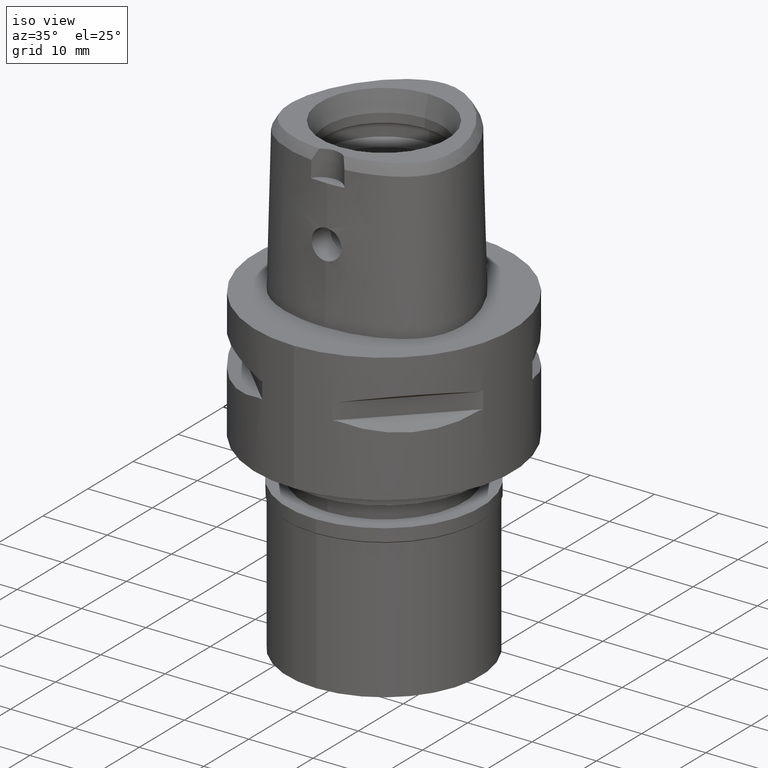
[diagram: clean part render]
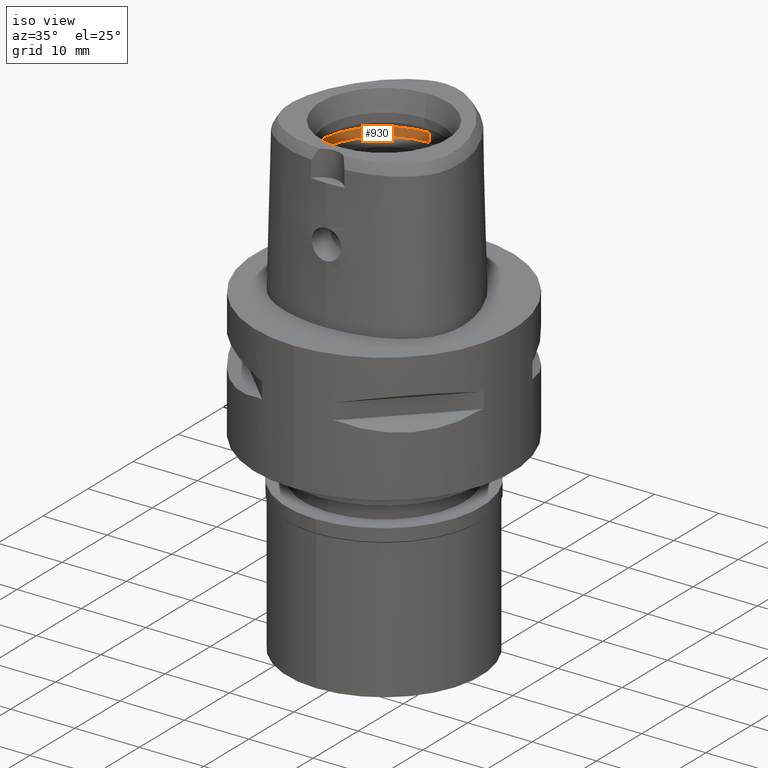
[diagram: same view with one face highlighted and labeled with its STEP entity id]
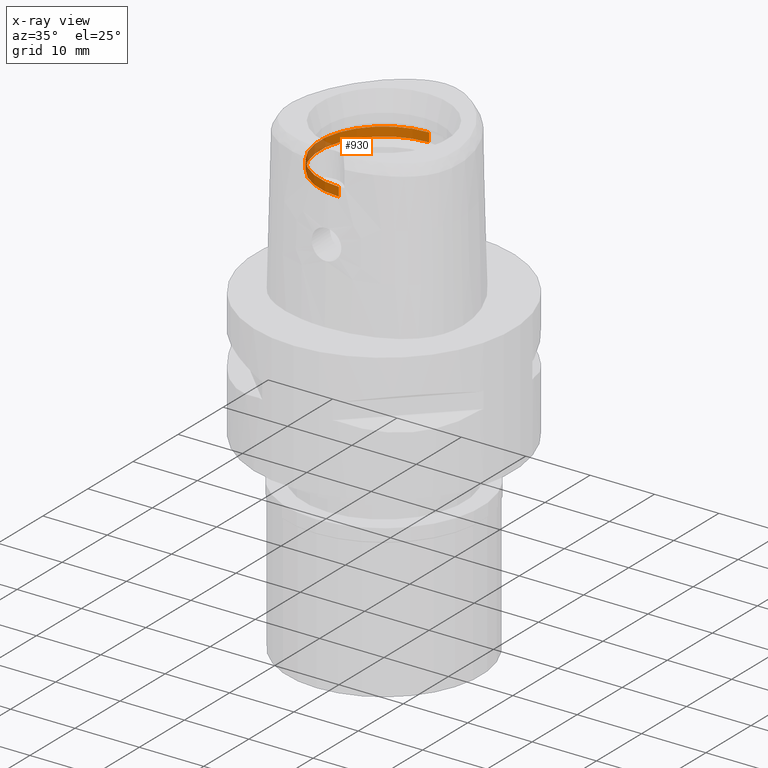
[diagram: x-ray of the same camera — body ghosted, the highlighted face saturated]
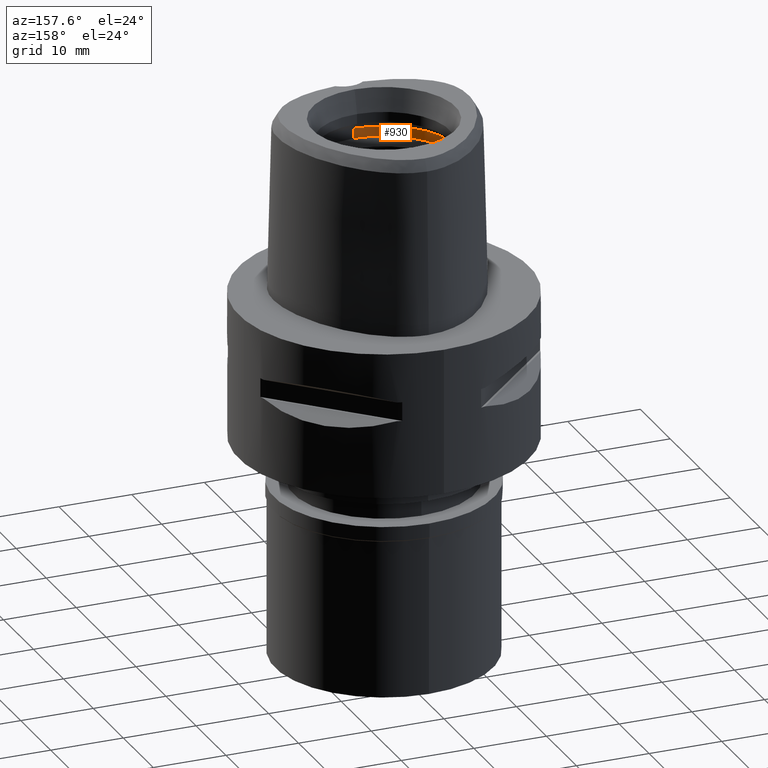
[diagram: same view with one face highlighted and labeled with its STEP entity id]
A machine part, iso view. The second image highlights one B-rep face of the part: STEP entity #930.
The next image is the same camera in x-ray: the body ghosted, the highlighted face saturated — about 13% of this face is hidden behind the body in this view.
A second angle (auxiliary view) of the same face is appended — the face is thin or edge-on in the first view.
In plain terms, the highlighted cylindrical surface (partial cylindrical patch) has radius 10 mm, axis along (0, 0, -1).
Its self-contained STEP definition (entity closure, byte-faithful):
#44 = EDGE_LOOP ( 'NONE', ( #546, #4665, #3674, #247 ) ) ;
#115 = DIRECTION ( 'NONE',  ( 0.0000000000000000000, -1.000000000000000000, 0.0000000000000000000 ) ) ;
#247 = ORIENTED_EDGE ( 'NONE', *, *, #2903, .F. ) ;
#399 = CIRCLE ( 'NONE', #2808, 10.00000000000000000 ) ;
#484 = DIRECTION ( 'NONE',  ( 0.0000000000000000000, -1.000000000000000000, 0.0000000000000000000 ) ) ;
#525 = LINE ( 'NONE', #1668, #3704 ) ;
#546 = ORIENTED_EDGE ( 'NONE', *, *, #1885, .T. ) ;
#555 = LINE ( 'NONE', #936, #1893 ) ;
#833 = FACE_OUTER_BOUND ( 'NONE', #44, .T. ) ;
#861 = CARTESIAN_POINT ( 'NONE',  ( 0.0000000000000000000, -10.00000000000000000, 17.10000000000000142 ) ) ;
#889 = DIRECTION ( 'NONE',  ( 0.0000000000000000000, 0.0000000000000000000, -1.000000000000000000 ) ) ;
#930 = ADVANCED_FACE ( 'NONE', ( #833 ), #2997, .F. ) ;
#936 = CARTESIAN_POINT ( 'NONE',  ( 0.0000000000000000000, 10.00000000000000000, 17.10000000000000142 ) ) ;
#1012 = DIRECTION ( 'NONE',  ( 0.0000000000000000000, 1.000000000000000000, 0.0000000000000000000 ) ) ;
#1140 = CARTESIAN_POINT ( 'NONE',  ( 0.0000000000000000000, 1.533257792532000136E-14, 25.19999999999999929 ) ) ;
#1668 = CARTESIAN_POINT ( 'NONE',  ( 0.0000000000000000000, -10.00000000000000000, 17.10000000000000142 ) ) ;
#1885 = EDGE_CURVE ( 'NONE', #2753, #3873, #3554, .T. ) ;
#1890 = CARTESIAN_POINT ( 'NONE',  ( 0.0000000000000000000, 10.00000000000000000, 18.50000000000000000 ) ) ;
#1893 = VECTOR ( 'NONE', #3459, 1000.000000000000000 ) ;
#2116 = DIRECTION ( 'NONE',  ( 0.0000000000000000000, 0.0000000000000000000, 1.000000000000000000 ) ) ;
#2385 = CARTESIAN_POINT ( 'NONE',  ( 0.0000000000000000000, 1.451206456990000256E-14, 18.50000000000000000 ) ) ;
#2503 = VERTEX_POINT ( 'NONE', #4359 ) ;
#2566 = CARTESIAN_POINT ( 'NONE',  ( 0.0000000000000000000, 10.00000000000000000, 17.10000000000000142 ) ) ;
#2753 = VERTEX_POINT ( 'NONE', #861 ) ;
#2808 = AXIS2_PLACEMENT_3D ( 'NONE', #2385, #2116, #1012 ) ;
#2903 = EDGE_CURVE ( 'NONE', #2753, #2503, #525, .T. ) ;
#2958 = DIRECTION ( 'NONE',  ( 0.0000000000000000000, 0.0000000000000000000, -1.000000000000000000 ) ) ;
#2984 = CARTESIAN_POINT ( 'NONE',  ( 0.0000000000000000000, 1.427938167806000271E-14, 17.10000000000000142 ) ) ;
#2997 = CYLINDRICAL_SURFACE ( 'NONE', #3077, 10.00000000000000000 ) ;
#3077 = AXIS2_PLACEMENT_3D ( 'NONE', #1140, #2958, #115 ) ;
#3080 = EDGE_CURVE ( 'NONE', #3873, #3937, #555, .T. ) ;
#3171 = AXIS2_PLACEMENT_3D ( 'NONE', #2984, #889, #484 ) ;
#3315 = EDGE_CURVE ( 'NONE', #3937, #2503, #399, .T. ) ;
#3408 = DIRECTION ( 'NONE',  ( 0.0000000000000000000, 0.0000000000000000000, 1.000000000000000000 ) ) ;
#3459 = DIRECTION ( 'NONE',  ( 0.0000000000000000000, 0.0000000000000000000, 1.000000000000000000 ) ) ;
#3554 = CIRCLE ( 'NONE', #3171, 10.00000000000000000 ) ;
#3674 = ORIENTED_EDGE ( 'NONE', *, *, #3315, .T. ) ;
#3704 = VECTOR ( 'NONE', #3408, 1000.000000000000000 ) ;
#3873 = VERTEX_POINT ( 'NONE', #2566 ) ;
#3937 = VERTEX_POINT ( 'NONE', #1890 ) ;
#4359 = CARTESIAN_POINT ( 'NONE',  ( 0.0000000000000000000, -10.00000000000000000, 18.50000000000000000 ) ) ;
#4665 = ORIENTED_EDGE ( 'NONE', *, *, #3080, .T. ) ;